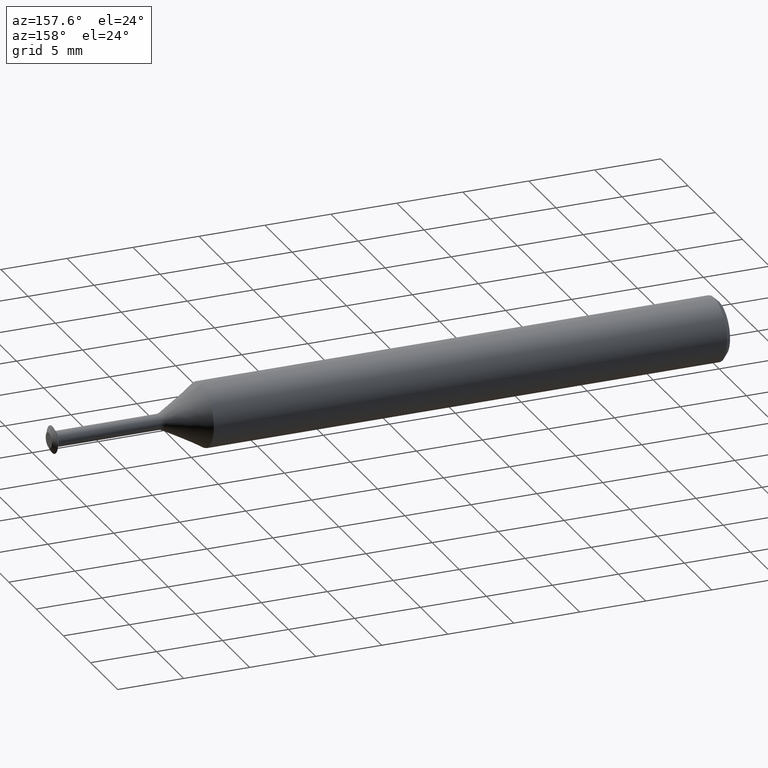
[diagram: clean part render]
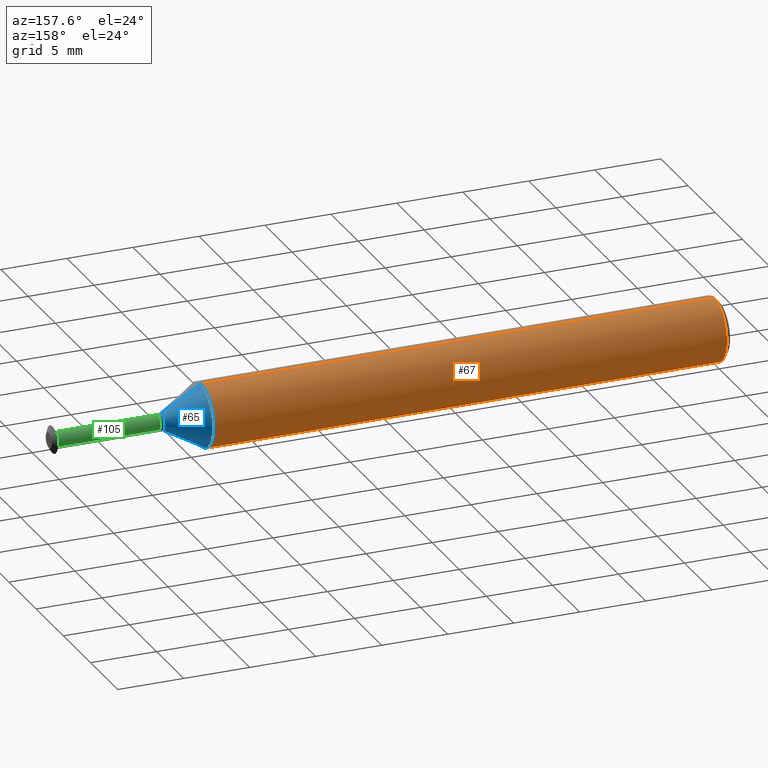
[diagram: same view with three faces highlighted in distinct colors, each labeled with its STEP entity id]
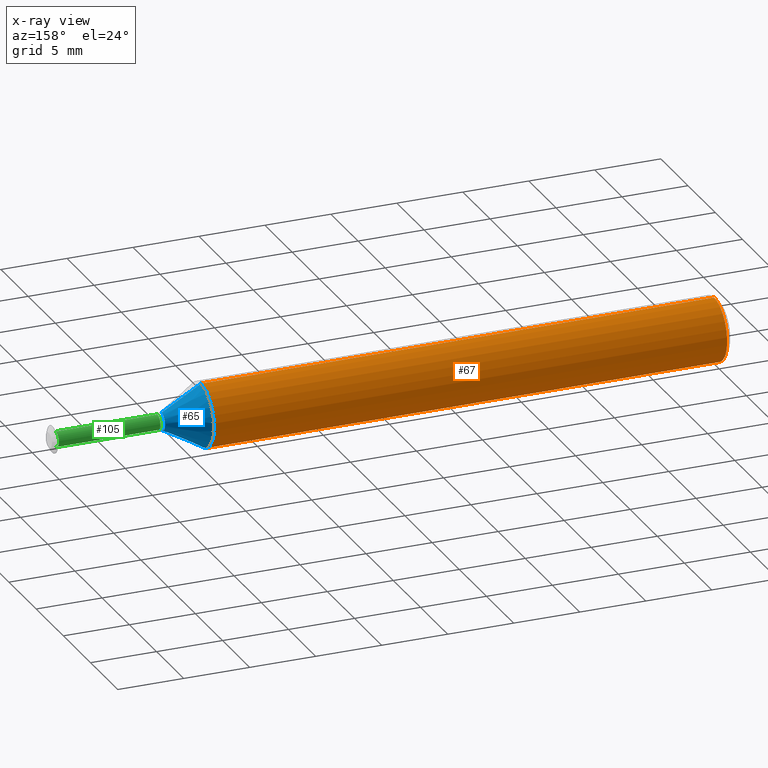
[diagram: x-ray of the same camera — body ghosted, the three highlighted faces saturated]
A machine part, auxiliary view with three faces highlighted in distinct colors.
The next image is the same camera in x-ray (body ghosted, the three faces saturated) — at least one of them is partly hidden behind the body in this view.
Their STEP definitions:

[orange] entity #67 — the highlighted cylindrical surface (edge-blend (fillet) strip) has radius 2.3774 mm, axis along (-1, -0, -0).
#3 = VERTEX_POINT ( 'NONE', #347 ) ;
#15 = AXIS2_PLACEMENT_3D ( 'NONE', #61, #472, #454 ) ;
#36 = EDGE_LOOP ( 'NONE', ( #368, #400, #151, #465 ) ) ;
#61 = CARTESIAN_POINT ( 'NONE',  ( 0.0000000000000000000, 0.0000000000000000000, 0.0000000000000000000 ) ) ;
#67 = ADVANCED_FACE ( 'NONE', ( #352 ), #467, .T. ) ;
#84 = CIRCLE ( 'NONE', #429, 0.09360000000000001652 ) ;
#133 = DIRECTION ( 'NONE',  ( -1.000000000000000000, -0.0000000000000000000, -0.0000000000000000000 ) ) ;
#149 = LINE ( 'NONE', #215, #442 ) ;
#150 = CARTESIAN_POINT ( 'NONE',  ( 1.546308552341094211, 0.0000000000000000000, 0.0000000000000000000 ) ) ;
#151 = ORIENTED_EDGE ( 'NONE', *, *, #301, .T. ) ;
#153 = DIRECTION ( 'NONE',  ( 0.0000000000000000000, 0.0000000000000000000, 1.000000000000000000 ) ) ;
#161 = VECTOR ( 'NONE', #296, 39.37007874015748143 ) ;
#173 = DIRECTION ( 'NONE',  ( 0.0000000000000000000, 0.0000000000000000000, -1.000000000000000000 ) ) ;
#186 = DIRECTION ( 'NONE',  ( -1.000000000000000000, -0.0000000000000000000, -0.0000000000000000000 ) ) ;
#193 = VERTEX_POINT ( 'NONE', #267 ) ;
#200 = EDGE_CURVE ( 'NONE', #3, #225, #149, .T. ) ;
#206 = CARTESIAN_POINT ( 'NONE',  ( 0.01499999999999997863, 0.0000000000000000000, 0.0000000000000000000 ) ) ;
#215 = CARTESIAN_POINT ( 'NONE',  ( 0.0000000000000000000, 0.0000000000000000000, 0.09360000000000001652 ) ) ;
#225 = VERTEX_POINT ( 'NONE', #447 ) ;
#267 = CARTESIAN_POINT ( 'NONE',  ( 0.01499999999999997863, 1.146269404001922775E-17, -0.09360000000000001652 ) ) ;
#293 = CARTESIAN_POINT ( 'NONE',  ( 0.0000000000000000000, 1.146269404001922775E-17, -0.09360000000000001652 ) ) ;
#296 = DIRECTION ( 'NONE',  ( -1.000000000000000000, -0.0000000000000000000, -0.0000000000000000000 ) ) ;
#301 = EDGE_CURVE ( 'NONE', #193, #225, #84, .T. ) ;
#347 = CARTESIAN_POINT ( 'NONE',  ( 1.546308552341094211, 0.0000000000000000000, 0.09360000000000001652 ) ) ;
#352 = FACE_OUTER_BOUND ( 'NONE', #36, .T. ) ;
#368 = ORIENTED_EDGE ( 'NONE', *, *, #451, .T. ) ;
#380 = CARTESIAN_POINT ( 'NONE',  ( 1.546308552341094211, 1.146269404001922621E-17, -0.09360000000000001652 ) ) ;
#381 = AXIS2_PLACEMENT_3D ( 'NONE', #150, #133, #153 ) ;
#395 = VERTEX_POINT ( 'NONE', #380 ) ;
#400 = ORIENTED_EDGE ( 'NONE', *, *, #500, .T. ) ;
#424 = CIRCLE ( 'NONE', #381, 0.09360000000000001652 ) ;
#429 = AXIS2_PLACEMENT_3D ( 'NONE', #206, #466, #173 ) ;
#442 = VECTOR ( 'NONE', #186, 39.37007874015748143 ) ;
#447 = CARTESIAN_POINT ( 'NONE',  ( 0.01499999999999997863, 0.0000000000000000000, 0.09360000000000001652 ) ) ;
#451 = EDGE_CURVE ( 'NONE', #3, #395, #424, .T. ) ;
#454 = DIRECTION ( 'NONE',  ( 0.0000000000000000000, 0.0000000000000000000, 1.000000000000000000 ) ) ;
#465 = ORIENTED_EDGE ( 'NONE', *, *, #200, .F. ) ;
#466 = DIRECTION ( 'NONE',  ( 1.000000000000000000, 0.0000000000000000000, 0.0000000000000000000 ) ) ;
#467 = CYLINDRICAL_SURFACE ( 'NONE', #15, 0.09360000000000001652 ) ;
#472 = DIRECTION ( 'NONE',  ( -1.000000000000000000, -0.0000000000000000000, -0.0000000000000000000 ) ) ;
#477 = LINE ( 'NONE', #293, #161 ) ;
#500 = EDGE_CURVE ( 'NONE', #395, #193, #477, .T. ) ;

[blue] entity #65 — the highlighted conical surface has half-angle 30 deg.
#3 = VERTEX_POINT ( 'NONE', #347 ) ;
#6 = EDGE_CURVE ( 'NONE', #55, #3, #444, .T. ) ;
#23 = DIRECTION ( 'NONE',  ( -1.000000000000000000, -0.0000000000000000000, -0.0000000000000000000 ) ) ;
#42 = DIRECTION ( 'NONE',  ( -0.8660254037844379305, 0.0000000000000000000, 0.5000000000000009992 ) ) ;
#55 = VERTEX_POINT ( 'NONE', #114 ) ;
#65 = ADVANCED_FACE ( 'NONE', ( #183 ), #377, .T. ) ;
#114 = CARTESIAN_POINT ( 'NONE',  ( 1.663656094570019617, 0.0000000000000000000, 0.02584936490538871506 ) ) ;
#127 = DIRECTION ( 'NONE',  ( 0.0000000000000000000, 0.0000000000000000000, 1.000000000000000000 ) ) ;
#133 = DIRECTION ( 'NONE',  ( -1.000000000000000000, -0.0000000000000000000, -0.0000000000000000000 ) ) ;
#140 = DIRECTION ( 'NONE',  ( 0.0000000000000000000, 0.0000000000000000000, 1.000000000000000000 ) ) ;
#150 = CARTESIAN_POINT ( 'NONE',  ( 1.546308552341094211, 0.0000000000000000000, 0.0000000000000000000 ) ) ;
#153 = DIRECTION ( 'NONE',  ( 0.0000000000000000000, 0.0000000000000000000, 1.000000000000000000 ) ) ;
#158 = VECTOR ( 'NONE', #42, 39.37007874015748854 ) ;
#160 = CARTESIAN_POINT ( 'NONE',  ( 1.663656094570019617, 0.0000000000000000000, 0.0000000000000000000 ) ) ;
#163 = CARTESIAN_POINT ( 'NONE',  ( 1.663656094570019617, 0.0000000000000000000, 0.02584936490538874629 ) ) ;
#183 = FACE_OUTER_BOUND ( 'NONE', #243, .T. ) ;
#208 = EDGE_CURVE ( 'NONE', #363, #395, #298, .T. ) ;
#216 = CIRCLE ( 'NONE', #403, 0.02584936490538874629 ) ;
#223 = DIRECTION ( 'NONE',  ( -0.8660254037844379305, 6.123233995736778362E-17, -0.5000000000000009992 ) ) ;
#237 = EDGE_CURVE ( 'NONE', #55, #363, #216, .T. ) ;
#243 = EDGE_LOOP ( 'NONE', ( #413, #450, #448, #250 ) ) ;
#250 = ORIENTED_EDGE ( 'NONE', *, *, #6, .F. ) ;
#298 = LINE ( 'NONE', #371, #445 ) ;
#347 = CARTESIAN_POINT ( 'NONE',  ( 1.546308552341094211, 0.0000000000000000000, 0.09360000000000001652 ) ) ;
#363 = VERTEX_POINT ( 'NONE', #434 ) ;
#371 = CARTESIAN_POINT ( 'NONE',  ( 1.663656094570019617, 3.165634199137625534E-18, -0.02584936490538874629 ) ) ;
#377 = CONICAL_SURFACE ( 'NONE', #480, 0.02584936490538874629, 0.5235987755983001479 ) ;
#380 = CARTESIAN_POINT ( 'NONE',  ( 1.546308552341094211, 1.146269404001922621E-17, -0.09360000000000001652 ) ) ;
#381 = AXIS2_PLACEMENT_3D ( 'NONE', #150, #133, #153 ) ;
#395 = VERTEX_POINT ( 'NONE', #380 ) ;
#403 = AXIS2_PLACEMENT_3D ( 'NONE', #405, #23, #140 ) ;
#405 = CARTESIAN_POINT ( 'NONE',  ( 1.663656094570019617, 0.0000000000000000000, 0.0000000000000000000 ) ) ;
#413 = ORIENTED_EDGE ( 'NONE', *, *, #237, .T. ) ;
#421 = DIRECTION ( 'NONE',  ( -1.000000000000000000, -0.0000000000000000000, -0.0000000000000000000 ) ) ;
#424 = CIRCLE ( 'NONE', #381, 0.09360000000000001652 ) ;
#434 = CARTESIAN_POINT ( 'NONE',  ( 1.663656094570019617, 3.165634199137621682E-18, -0.02584936490538871506 ) ) ;
#444 = LINE ( 'NONE', #163, #158 ) ;
#445 = VECTOR ( 'NONE', #223, 39.37007874015748854 ) ;
#448 = ORIENTED_EDGE ( 'NONE', *, *, #451, .F. ) ;
#450 = ORIENTED_EDGE ( 'NONE', *, *, #208, .T. ) ;
#451 = EDGE_CURVE ( 'NONE', #3, #395, #424, .T. ) ;
#480 = AXIS2_PLACEMENT_3D ( 'NONE', #160, #421, #127 ) ;

[green] entity #105 — the highlighted cylindrical surface (edge-blend (fillet) strip) has radius 0.5715 mm, axis along (-1, -0, -0).
#1 = VECTOR ( 'NONE', #210, 39.37007874015748143 ) ;
#5 = DIRECTION ( 'NONE',  ( -1.000000000000000000, -0.0000000000000000000, -0.0000000000000000000 ) ) ;
#7 = VERTEX_POINT ( 'NONE', #446 ) ;
#10 = CYLINDRICAL_SURFACE ( 'NONE', #240, 0.02249999999999965916 ) ;
#11 = EDGE_CURVE ( 'NONE', #7, #259, #232, .T. ) ;
#21 = VECTOR ( 'NONE', #276, 39.37007874015748143 ) ;
#25 = CARTESIAN_POINT ( 'NONE',  ( 0.0000000000000000000, 0.0000000000000000000, 0.02249999999999965916 ) ) ;
#72 = LINE ( 'NONE', #217, #1 ) ;
#76 = AXIS2_PLACEMENT_3D ( 'NONE', #440, #271, #265 ) ;
#105 = ADVANCED_FACE ( 'NONE', ( #294 ), #10, .T. ) ;
#118 = ORIENTED_EDGE ( 'NONE', *, *, #314, .T. ) ;
#121 = AXIS2_PLACEMENT_3D ( 'NONE', #122, #346, #303 ) ;
#122 = CARTESIAN_POINT ( 'NONE',  ( 1.978914729518483684, 0.0000000000000000000, 0.0000000000000000000 ) ) ;
#143 = ORIENTED_EDGE ( 'NONE', *, *, #336, .F. ) ;
#164 = VERTEX_POINT ( 'NONE', #430 ) ;
#198 = LINE ( 'NONE', #25, #21 ) ;
#209 = ORIENTED_EDGE ( 'NONE', *, *, #11, .T. ) ;
#210 = DIRECTION ( 'NONE',  ( -1.000000000000000000, -0.0000000000000000000, -0.0000000000000000000 ) ) ;
#217 = CARTESIAN_POINT ( 'NONE',  ( 0.0000000000000000000, 2.755455298081503178E-18, -0.02249999999999965916 ) ) ;
#220 = DIRECTION ( 'NONE',  ( 0.0000000000000000000, 0.0000000000000000000, 1.000000000000000000 ) ) ;
#232 = CIRCLE ( 'NONE', #121, 0.02249999999999963141 ) ;
#240 = AXIS2_PLACEMENT_3D ( 'NONE', #375, #5, #220 ) ;
#259 = VERTEX_POINT ( 'NONE', #497 ) ;
#265 = DIRECTION ( 'NONE',  ( 0.0000000000000000000, 0.0000000000000000000, 1.000000000000000000 ) ) ;
#270 = EDGE_CURVE ( 'NONE', #164, #353, #366, .T. ) ;
#271 = DIRECTION ( 'NONE',  ( -1.000000000000000000, -0.0000000000000000000, -0.0000000000000000000 ) ) ;
#276 = DIRECTION ( 'NONE',  ( -1.000000000000000000, -0.0000000000000000000, -0.0000000000000000000 ) ) ;
#294 = FACE_OUTER_BOUND ( 'NONE', #344, .T. ) ;
#303 = DIRECTION ( 'NONE',  ( 0.0000000000000000000, 0.0000000000000000000, 1.000000000000000000 ) ) ;
#314 = EDGE_CURVE ( 'NONE', #259, #353, #72, .T. ) ;
#336 = EDGE_CURVE ( 'NONE', #7, #164, #198, .T. ) ;
#344 = EDGE_LOOP ( 'NONE', ( #209, #118, #416, #143 ) ) ;
#346 = DIRECTION ( 'NONE',  ( -1.000000000000000000, -0.0000000000000000000, -0.0000000000000000000 ) ) ;
#353 = VERTEX_POINT ( 'NONE', #419 ) ;
#366 = CIRCLE ( 'NONE', #76, 0.02249999999999968345 ) ;
#375 = CARTESIAN_POINT ( 'NONE',  ( 0.0000000000000000000, 0.0000000000000000000, 0.0000000000000000000 ) ) ;
#416 = ORIENTED_EDGE ( 'NONE', *, *, #270, .F. ) ;
#419 = CARTESIAN_POINT ( 'NONE',  ( 1.676156094570019572, 2.755455298081505874E-18, -0.02249999999999968345 ) ) ;
#430 = CARTESIAN_POINT ( 'NONE',  ( 1.676156094570019572, 0.0000000000000000000, 0.02249999999999968345 ) ) ;
#440 = CARTESIAN_POINT ( 'NONE',  ( 1.676156094570019572, 0.0000000000000000000, 0.0000000000000000000 ) ) ;
#446 = CARTESIAN_POINT ( 'NONE',  ( 1.978914729518483684, 3.827021247335434091E-18, 0.02249999999999963141 ) ) ;
#497 = CARTESIAN_POINT ( 'NONE',  ( 1.978914729518483684, 0.0000000000000000000, -0.02249999999999963141 ) ) ;